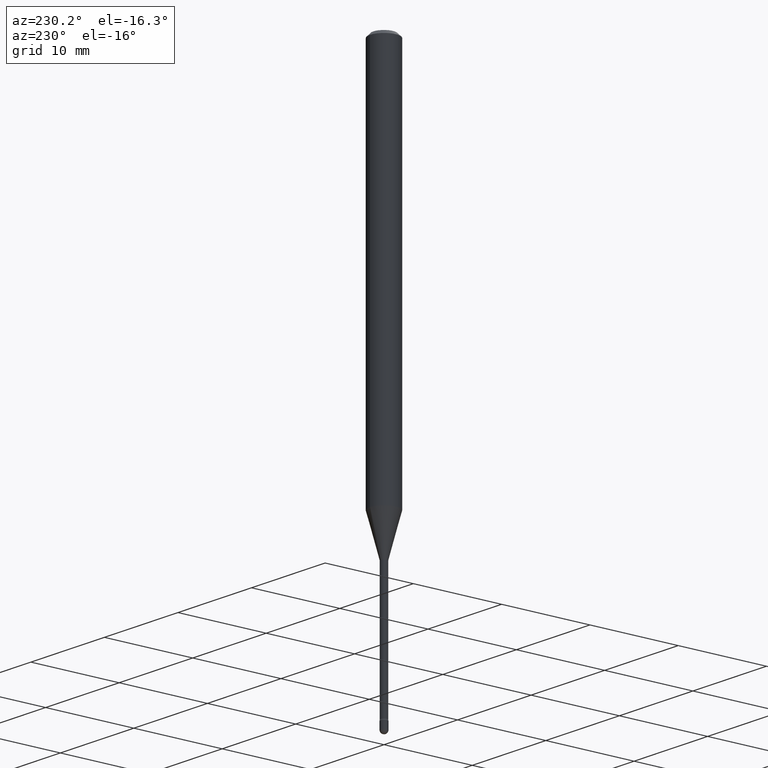
[diagram: clean part render]
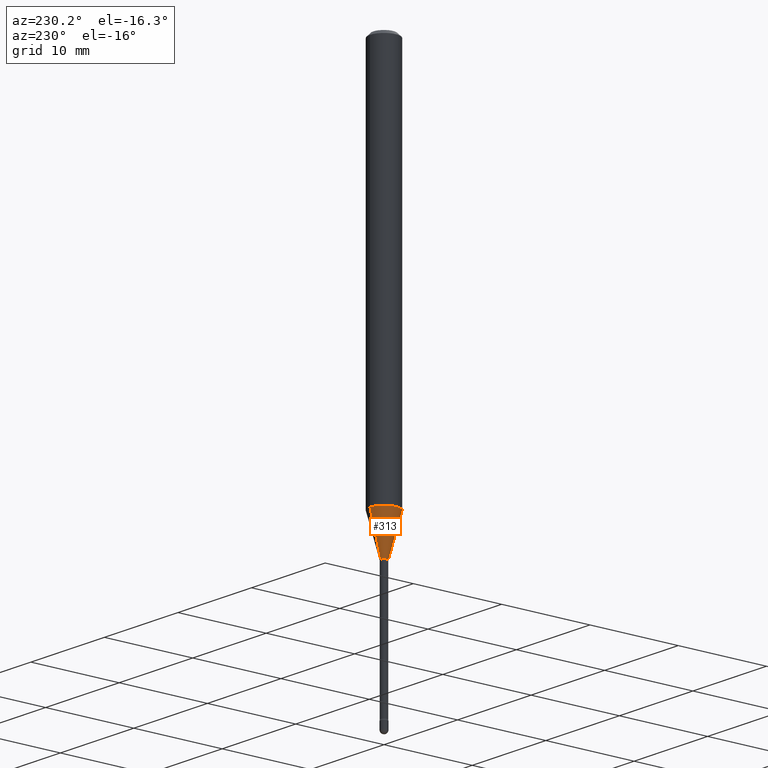
[diagram: same view with one face highlighted and labeled with its STEP entity id]
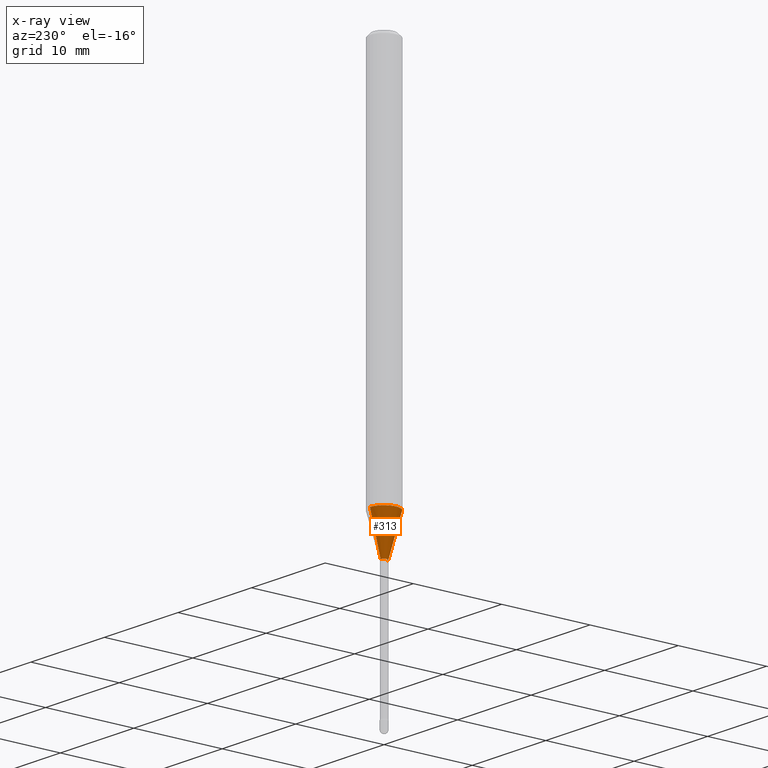
[diagram: x-ray of the same camera — body ghosted, the highlighted face saturated]
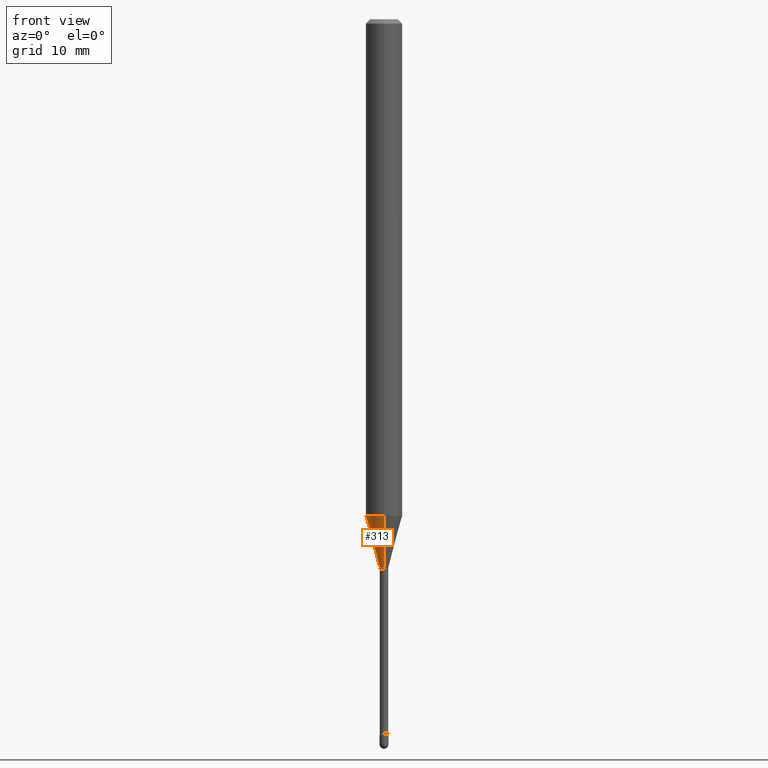
[diagram: same view with one face highlighted and labeled with its STEP entity id]
A machine part, auxiliary view. The second image highlights one B-rep face of the part: STEP entity #313.
The next image is the same camera in x-ray: the body ghosted, the highlighted face saturated — about 0% of this face is hidden behind the body in this view.
A second angle (front view) of the same face is appended — the face is thin or edge-on in the first view.
In plain terms, the highlighted conical surface has half-angle 15 deg.
Its self-contained STEP definition (entity closure, byte-faithful):
#8 = EDGE_CURVE ( 'NONE', #174, #183, #133, .T. ) ;
#25 = CARTESIAN_POINT ( 'NONE',  ( 2.755524256971723102E-16, 0.01506111260565742675, -1.878092501787273161 ) ) ;
#35 = VECTOR ( 'NONE', #310, 39.37007874015748143 ) ;
#52 = CARTESIAN_POINT ( 'NONE',  ( -1.051711872097357942E-16, -0.01506111260567053779, -1.878092501787273161 ) ) ;
#99 = CARTESIAN_POINT ( 'NONE',  ( 4.592826036597323765E-29, -6.557311449324046967E-15, -1.878092501787273161 ) ) ;
#123 = CARTESIAN_POINT ( 'NONE',  ( 1.070156415442400836E-16, 0.01506111260565742502, -1.878092501787273161 ) ) ;
#124 = ORIENTED_EDGE ( 'NONE', *, *, #8, .F. ) ;
#133 = CIRCLE ( 'NONE', #351, 0.06250000000000000000 ) ;
#157 = CIRCLE ( 'NONE', #510, 0.01506111260566398054 ) ;
#164 = VERTEX_POINT ( 'NONE', #52 ) ;
#171 = LINE ( 'NONE', #388, #35 ) ;
#174 = VERTEX_POINT ( 'NONE', #354 ) ;
#183 = VERTEX_POINT ( 'NONE', #275 ) ;
#192 = DIRECTION ( 'NONE',  ( -6.982962677686265922E-15, -1.000000000000000000, 0.000000000000000000 ) ) ;
#194 = VECTOR ( 'NONE', #551, 39.37007874015748854 ) ;
#249 = VERTEX_POINT ( 'NONE', #25 ) ;
#268 = DIRECTION ( 'NONE',  ( -2.445473815707476510E-29, 3.491474164922030519E-15, 1.000000000000000000 ) ) ;
#275 = CARTESIAN_POINT ( 'NONE',  ( -4.364351673553500570E-16, -0.06250000000000595357, -1.701048163777072464 ) ) ;
#290 = DIRECTION ( 'NONE',  ( -2.445473815707476510E-29, 3.491474164922030519E-15, 1.000000000000000000 ) ) ;
#310 = DIRECTION ( 'NONE',  ( -1.807323732225327773E-15, -0.2588190451025178529, 0.9659258262890690894 ) ) ;
#313 = ADVANCED_FACE ( 'NONE', ( #382 ), #412, .T. ) ;
#333 = CARTESIAN_POINT ( 'NONE',  ( 4.159868743774115107E-29, -5.939165717115708195E-15, -1.701048163777072908 ) ) ;
#343 = AXIS2_PLACEMENT_3D ( 'NONE', #457, #464, #547 ) ;
#351 = AXIS2_PLACEMENT_3D ( 'NONE', #333, #290, #536 ) ;
#352 = EDGE_CURVE ( 'NONE', #249, #174, #426, .T. ) ;
#354 = CARTESIAN_POINT ( 'NONE',  ( 4.440892098501039328E-16, 0.06249999999999404643, -1.701048163777073130 ) ) ;
#359 = ORIENTED_EDGE ( 'NONE', *, *, #414, .T. ) ;
#382 = FACE_OUTER_BOUND ( 'NONE', #470, .T. ) ;
#388 = CARTESIAN_POINT ( 'NONE',  ( -1.051711872097357942E-16, -0.01506111260567053779, -1.878092501787273161 ) ) ;
#412 = CONICAL_SURFACE ( 'NONE', #343, 0.01506111260566398054, 0.2617993877991499074 ) ;
#414 = EDGE_CURVE ( 'NONE', #249, #164, #157, .T. ) ;
#425 = ORIENTED_EDGE ( 'NONE', *, *, #352, .F. ) ;
#426 = LINE ( 'NONE', #123, #194 ) ;
#457 = CARTESIAN_POINT ( 'NONE',  ( 4.592826036597323765E-29, -6.557311449324046967E-15, -1.878092501787273161 ) ) ;
#464 = DIRECTION ( 'NONE',  ( -2.445473815707476510E-29, 3.491474164922030519E-15, 1.000000000000000000 ) ) ;
#470 = EDGE_LOOP ( 'NONE', ( #425, #359, #519, #124 ) ) ;
#510 = AXIS2_PLACEMENT_3D ( 'NONE', #99, #268, #192 ) ;
#512 = EDGE_CURVE ( 'NONE', #164, #183, #171, .T. ) ;
#519 = ORIENTED_EDGE ( 'NONE', *, *, #512, .T. ) ;
#536 = DIRECTION ( 'NONE',  ( -6.982962677686265922E-15, -1.000000000000000000, 4.370956789862821150E-15 ) ) ;
#547 = DIRECTION ( 'NONE',  ( -6.982962677686265922E-15, -1.000000000000000000, 0.000000000000000000 ) ) ;
#551 = DIRECTION ( 'NONE',  ( 1.839019923739597554E-15, 0.2588190451025245697, 0.9659258262890670910 ) ) ;